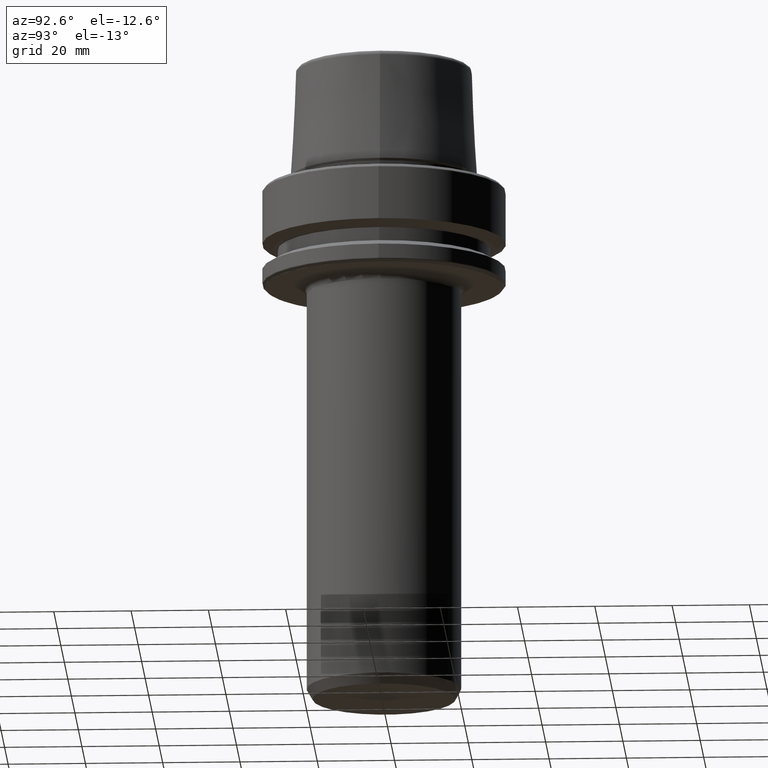
[diagram: clean part render]
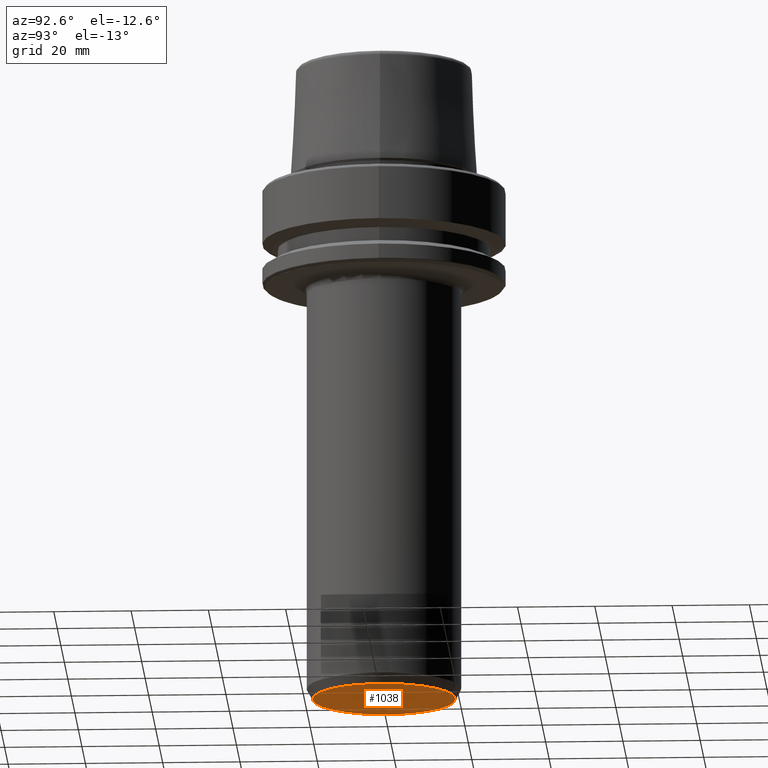
[diagram: same view with one face highlighted and labeled with its STEP entity id]
A machine part, auxiliary view. The second image highlights one B-rep face of the part: STEP entity #1038.
In plain terms, the highlighted planar face has unit normal (-0, 0, -1).
Its self-contained STEP definition (entity closure, byte-faithful):
#50 = CARTESIAN_POINT ( 'NONE',  ( 0.0000000000000000000, 2.449293598294707300E-015, -135.0000000000000000 ) ) ;
#66 = AXIS2_PLACEMENT_3D ( 'NONE', #50, #814, #771 ) ;
#241 = EDGE_LOOP ( 'NONE', ( #554, #412 ) ) ;
#248 = AXIS2_PLACEMENT_3D ( 'NONE', #259, #870, #1137 ) ;
#259 = CARTESIAN_POINT ( 'NONE',  ( 0.0000000000000000000, 18.50000000000000000, -135.0000000000000000 ) ) ;
#342 = AXIS2_PLACEMENT_3D ( 'NONE', #398, #593, #1092 ) ;
#398 = CARTESIAN_POINT ( 'NONE',  ( 0.0000000000000000000, 2.449293598294707300E-015, -135.0000000000000000 ) ) ;
#412 = ORIENTED_EDGE ( 'NONE', *, *, #848, .T. ) ;
#552 = CARTESIAN_POINT ( 'NONE',  ( 2.357445088358654400E-015, 18.50000000000000000, -135.0000000000000000 ) ) ;
#554 = ORIENTED_EDGE ( 'NONE', *, *, #888, .T. ) ;
#593 = DIRECTION ( 'NONE',  ( -0.0000000000000000000, 2.247058347059364400E-017, -1.000000000000000000 ) ) ;
#701 = CIRCLE ( 'NONE', #66, 18.49999999999999600 ) ;
#749 = PLANE ( 'NONE',  #248 ) ;
#771 = DIRECTION ( 'NONE',  ( 0.0000000000000000000, 1.000000000000000000, 0.0000000000000000000 ) ) ;
#783 = FACE_OUTER_BOUND ( 'NONE', #241, .T. ) ;
#814 = DIRECTION ( 'NONE',  ( -0.0000000000000000000, 2.247058347059364400E-017, -1.000000000000000000 ) ) ;
#848 = EDGE_CURVE ( 'NONE', #1129, #1173, #933, .T. ) ;
#870 = DIRECTION ( 'NONE',  ( -0.0000000000000000000, 2.247058347059364400E-017, -1.000000000000000000 ) ) ;
#888 = EDGE_CURVE ( 'NONE', #1173, #1129, #701, .T. ) ;
#933 = CIRCLE ( 'NONE', #342, 18.49999999999999600 ) ;
#1038 = ADVANCED_FACE ( 'NONE', ( #783 ), #749, .T. ) ;
#1053 = CARTESIAN_POINT ( 'NONE',  ( 0.0000000000000000000, -18.49999999999999300, -135.0000000000000000 ) ) ;
#1092 = DIRECTION ( 'NONE',  ( 0.0000000000000000000, 1.000000000000000000, 0.0000000000000000000 ) ) ;
#1129 = VERTEX_POINT ( 'NONE', #552 ) ;
#1137 = DIRECTION ( 'NONE',  ( 0.0000000000000000000, 1.000000000000000000, 2.247058347059364400E-017 ) ) ;
#1173 = VERTEX_POINT ( 'NONE', #1053 ) ;